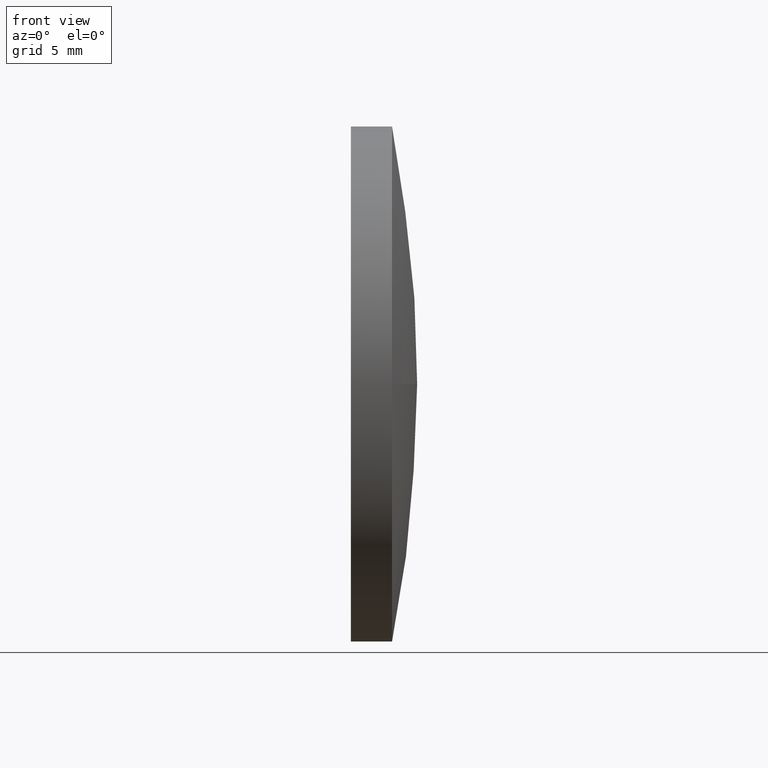
[diagram: clean part render]
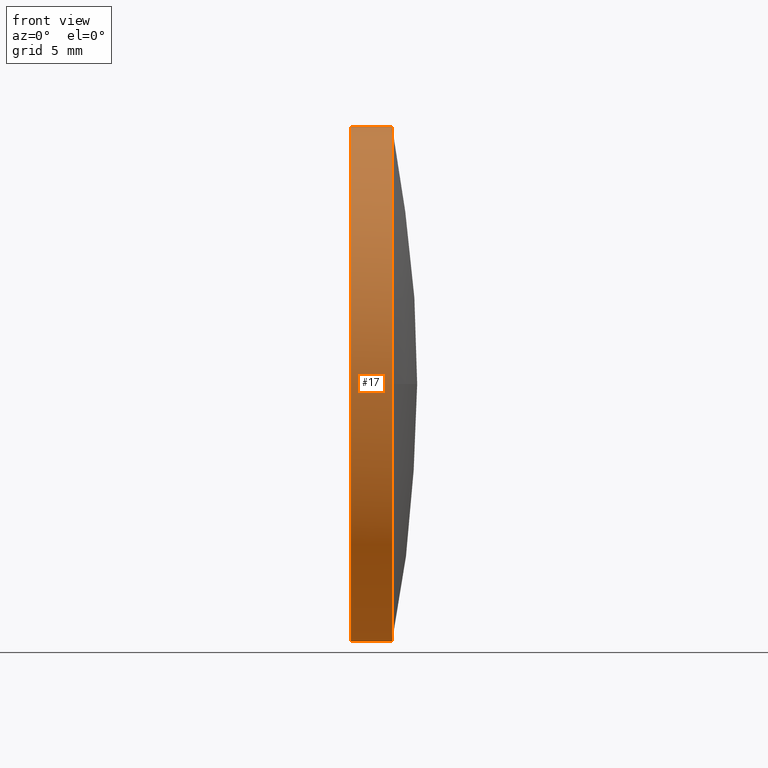
[diagram: same view with one face highlighted and labeled with its STEP entity id]
A machine part, front view. The second image highlights one B-rep face of the part: STEP entity #17.
In plain terms, the highlighted cylindrical surface (partial cylindrical patch) has radius 12.5 mm, axis along (-1, -0, -0).
Its self-contained STEP definition (entity closure, byte-faithful):
#6 = DIRECTION ( 'NONE',  ( -1.000000000000000000, -0.0000000000000000000, -0.0000000000000000000 ) ) ;
#7 = CARTESIAN_POINT ( 'NONE',  ( 446.6061647457008200, 82.09384113862540700, -12.50000000000001100 ) ) ;
#11 = CARTESIAN_POINT ( 'NONE',  ( 446.6061647457008200, 82.09384113862540700, 0.0000000000000000000 ) ) ;
#13 = DIRECTION ( 'NONE',  ( -1.000000000000000000, -0.0000000000000000000, -0.0000000000000000000 ) ) ;
#14 = AXIS2_PLACEMENT_3D ( 'NONE', #91, #6, #167 ) ;
#17 = ADVANCED_FACE ( 'NONE', ( #152 ), #157, .T. ) ;
#23 = DIRECTION ( 'NONE',  ( -1.000000000000000000, -0.0000000000000000000, -0.0000000000000000000 ) ) ;
#31 = EDGE_LOOP ( 'NONE', ( #100, #160, #175, #144, #109 ) ) ;
#33 = AXIS2_PLACEMENT_3D ( 'NONE', #11, #57, #55 ) ;
#34 = VECTOR ( 'NONE', #13, 1000.000000000000000 ) ;
#36 = CARTESIAN_POINT ( 'NONE',  ( 448.6061647457008200, 82.09384113862540700, 12.50000000000001100 ) ) ;
#38 = VERTEX_POINT ( 'NONE', #106 ) ;
#41 = VECTOR ( 'NONE', #126, 1000.000000000000000 ) ;
#42 = EDGE_CURVE ( 'NONE', #141, #148, #78, .T. ) ;
#54 = CARTESIAN_POINT ( 'NONE',  ( 441.8641335038109300, 82.09384113862540700, -12.50000000000001100 ) ) ;
#55 = DIRECTION ( 'NONE',  ( 0.0000000000000000000, 0.0000000000000000000, 1.000000000000000000 ) ) ;
#57 = DIRECTION ( 'NONE',  ( -1.000000000000000000, -0.0000000000000000000, -0.0000000000000000000 ) ) ;
#69 = DIRECTION ( 'NONE',  ( -1.000000000000000000, -0.0000000000000000000, -0.0000000000000000000 ) ) ;
#71 = DIRECTION ( 'NONE',  ( 0.0000000000000000000, 0.0000000000000000000, 1.000000000000000000 ) ) ;
#72 = EDGE_CURVE ( 'NONE', #115, #148, #128, .T. ) ;
#73 = CIRCLE ( 'NONE', #183, 12.50000000000001100 ) ;
#78 = LINE ( 'NONE', #154, #41 ) ;
#80 = VERTEX_POINT ( 'NONE', #86 ) ;
#86 = CARTESIAN_POINT ( 'NONE',  ( 448.6061647457008200, 82.09384113862540700, -12.50000000000001100 ) ) ;
#87 = AXIS2_PLACEMENT_3D ( 'NONE', #184, #69, #71 ) ;
#91 = CARTESIAN_POINT ( 'NONE',  ( 441.8641335038109300, 82.09384113862540700, 0.0000000000000000000 ) ) ;
#97 = CARTESIAN_POINT ( 'NONE',  ( 448.6061647457008200, 82.09384113862540700, 0.0000000000000000000 ) ) ;
#100 = ORIENTED_EDGE ( 'NONE', *, *, #179, .F. ) ;
#106 = CARTESIAN_POINT ( 'NONE',  ( 448.6061647457008200, 69.59384113862536500, -1.530808498934193100E-015 ) ) ;
#109 = ORIENTED_EDGE ( 'NONE', *, *, #72, .F. ) ;
#110 = LINE ( 'NONE', #54, #34 ) ;
#115 = VERTEX_POINT ( 'NONE', #7 ) ;
#126 = DIRECTION ( 'NONE',  ( -1.000000000000000000, -0.0000000000000000000, -0.0000000000000000000 ) ) ;
#128 = CIRCLE ( 'NONE', #33, 12.50000000000001100 ) ;
#132 = DIRECTION ( 'NONE',  ( 0.0000000000000000000, 0.0000000000000000000, 1.000000000000000000 ) ) ;
#136 = CARTESIAN_POINT ( 'NONE',  ( 446.6061647457008200, 82.09384113862540700, 12.50000000000001100 ) ) ;
#141 = VERTEX_POINT ( 'NONE', #36 ) ;
#144 = ORIENTED_EDGE ( 'NONE', *, *, #42, .T. ) ;
#148 = VERTEX_POINT ( 'NONE', #136 ) ;
#150 = CIRCLE ( 'NONE', #87, 12.50000000000001100 ) ;
#152 = FACE_OUTER_BOUND ( 'NONE', #31, .T. ) ;
#154 = CARTESIAN_POINT ( 'NONE',  ( 441.8641335038109300, 82.09384113862540700, 12.50000000000001100 ) ) ;
#157 = CYLINDRICAL_SURFACE ( 'NONE', #14, 12.50000000000001100 ) ;
#160 = ORIENTED_EDGE ( 'NONE', *, *, #174, .T. ) ;
#167 = DIRECTION ( 'NONE',  ( 0.0000000000000000000, 0.0000000000000000000, 1.000000000000000000 ) ) ;
#172 = EDGE_CURVE ( 'NONE', #38, #141, #73, .T. ) ;
#174 = EDGE_CURVE ( 'NONE', #80, #38, #150, .T. ) ;
#175 = ORIENTED_EDGE ( 'NONE', *, *, #172, .T. ) ;
#179 = EDGE_CURVE ( 'NONE', #80, #115, #110, .T. ) ;
#183 = AXIS2_PLACEMENT_3D ( 'NONE', #97, #23, #132 ) ;
#184 = CARTESIAN_POINT ( 'NONE',  ( 448.6061647457008200, 82.09384113862540700, 0.0000000000000000000 ) ) ;